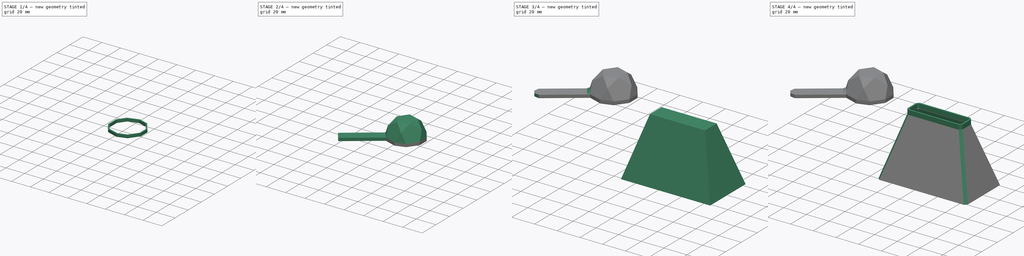
[diagram: build sequence overview — one tinted view per stage of 4, left to right]
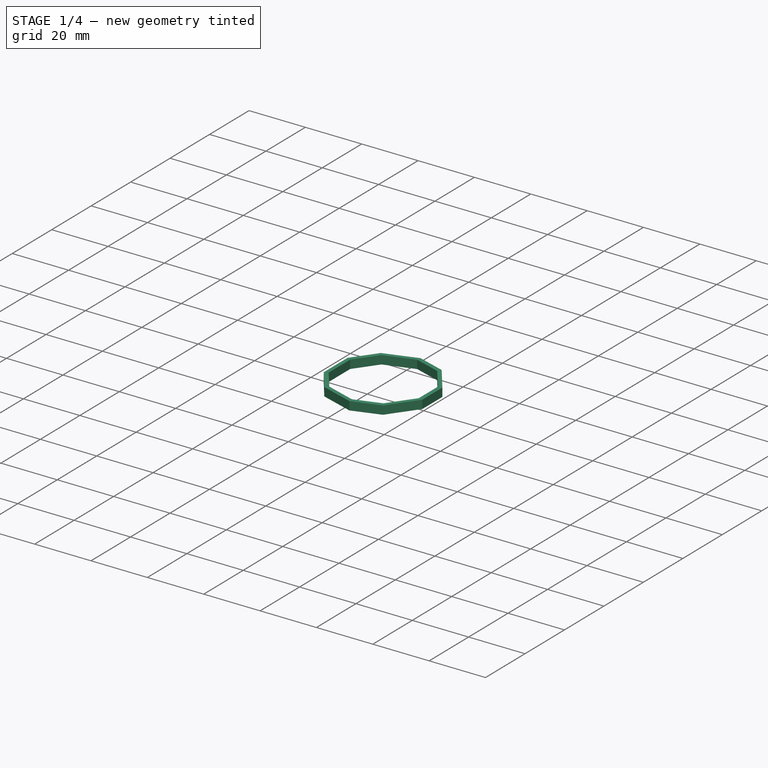
[diagram: stage 1 of 4 — iso view after this stage's code; geometry added in this stage tinted green]
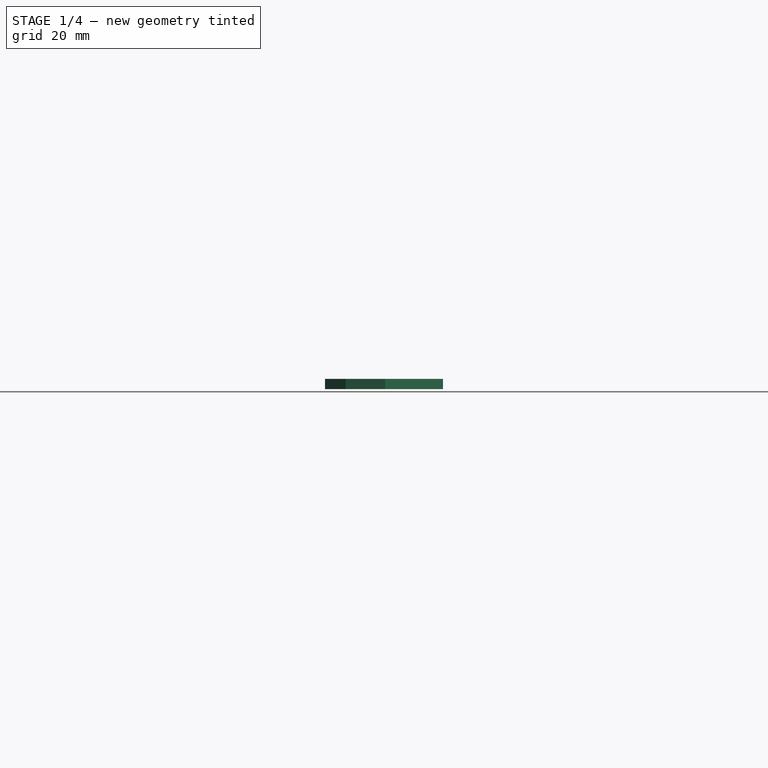
[diagram: stage 1 of 4 — front view after this stage's code; geometry added in this stage tinted green]
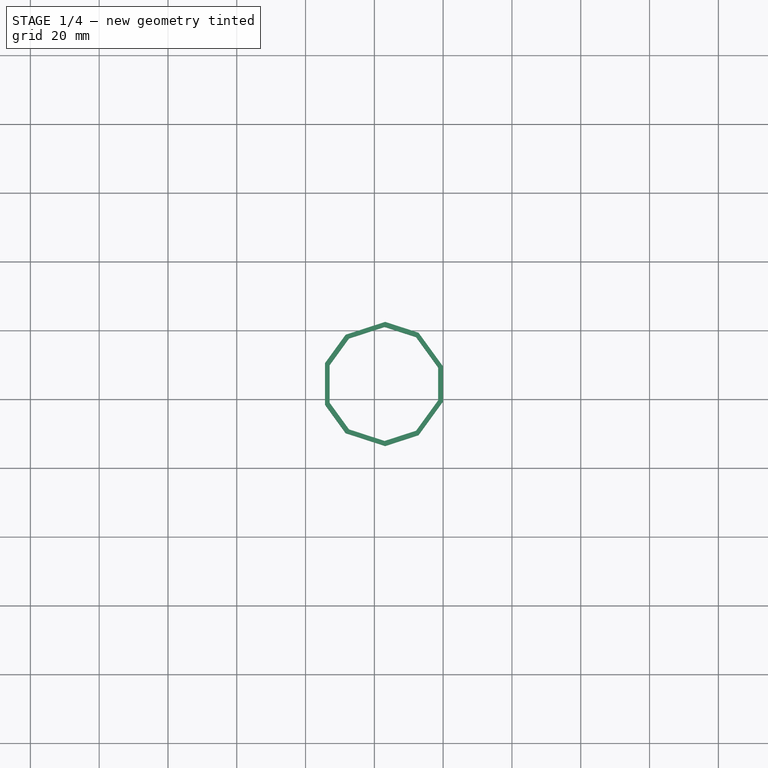
[diagram: stage 1 of 4 — top view after this stage's code; geometry added in this stage tinted green]
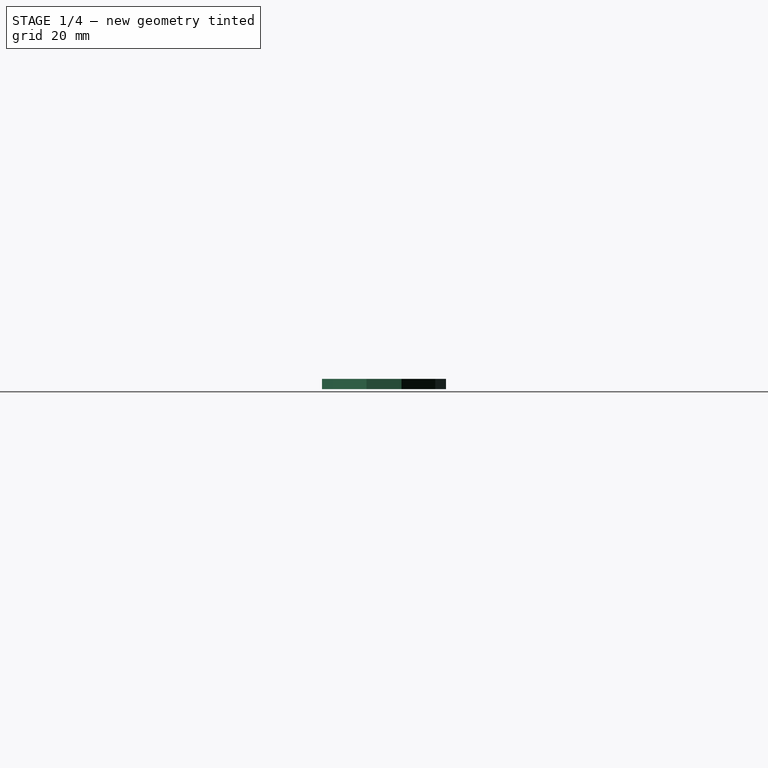
[diagram: stage 1 of 4 — right view after this stage's code; geometry added in this stage tinted green]
FCSTD DOCUMENT  (FreeCAD 2023.810R14555 (Git shallow))
Label: nevermore funnel
License: All rights reserved
LicenseURL: https://en.wikipedia.org/wiki/All_rights_reserved
objects: PartDesign::Chamfer×4, Sketcher::SketchObject×3, Part::Feature×2, Part::Refine×2, PartDesign::Pad×2, PartDesign::Body×2, PartDesign::SubShapeBinder×1, PartDesign::AdditiveLoft×1, PartDesign::Thickness×1, Part::Box×1, Part::Cut×1, Part::FeaturePython×1, Part::Extrusion×1, Part::MultiFuse×1, PartDesign::FeatureBase×1
note: 44 computed .brp shape members not serialized (recipe doc carries the construction recipe); baked Part::Feature solids carry a one-line shape summary decoded from their .brp

FEATURE [PartDesign::Body] Body  label="funnel"
  AutoGroupSolids = false
  ClaimAllChildren = false
  ExportMode = 0
  FixShape = 1
  Group = -> [Binder,Sketch,Sketch001,Loft,Pad,Chamfer,Thickness]
  InvalidShape = false
  Origin = -> Origin
  Tip = -> Thickness
  TreeRank = 16
  ValidateShape = false
  _ExportChildren = -> [Binder,Loft,Pad,Chamfer,Thickness]
  _GroupVersion = 1
FEATURE [Part::Feature] cup001_solid  label="cup001 (Solid)"
  FixShape = 1
  InvalidShape = false
  TreeRank = 32
  ValidateShape = false
  shape: bbox 35 x 36.8 x 15.65 mm, 180 faces (baked)
FEATURE [Part::Refine] Refined001  label="cup001 (Solid)001"
  FixShape = 1
  InvalidShape = false
  Source = -> cup001_solid
  TreeRank = 33
  ValidateShape = false
FEATURE [Part::Box] Box  label="Cube"
  AttacherType = Attacher::AttachEngine3D
  FixShape = 1
  Height = 1
  InvalidShape = false
  Length = 50
  TreeRank = 34
  ValidateShape = false
  Width = 50
FEATURE [Part::Cut] Cut
  Base = -> Refined001
  FixShape = 1
  InvalidShape = false
  Refine = true
  Tool = -> Box
  TreeRank = 35
  ValidateShape = false
FEATURE [Part::FeaturePython] Facebinder  # WARN: FeaturePython — macro-defined, semantics opaque (R4)
  Area = 147.554
  Extrusion = 0
  Faces = -> [Cut]
  FixShape = 1
  InvalidShape = false
  RemoveSplitter = false
  Sew = false
  TreeRank = 36
  ValidateShape = false
FEATURE [Part::Extrusion] Extrude
  AutoTaperInnerAngle = true
  Base = -> Facebinder
  Dir = (0,0,-1)
  DirMode = 2
  FaceMakerClass = Part::FaceMakerBullseye
  FixShape = 1
  InvalidShape = false
  LengthFwd = 3
  LengthRev = 0
  Linearize = true
  Solid = false
  Symmetric = false
  TaperInnerAngle = 0
  TaperInnerAngleRev = 0
  TreeRank = 37
  ValidateShape = false
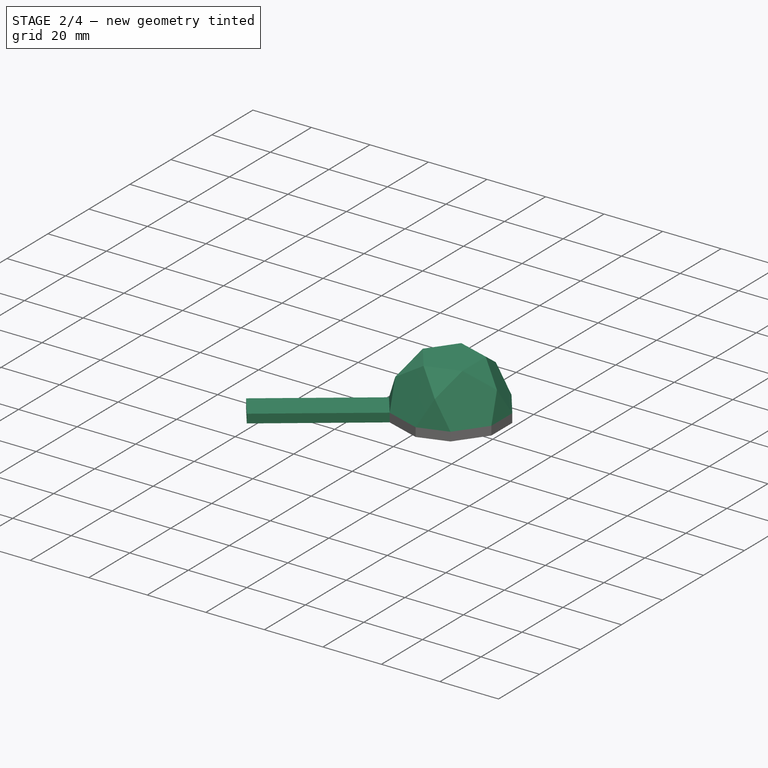
[diagram: stage 2 of 4 — iso view after this stage's code; geometry added in this stage tinted green]
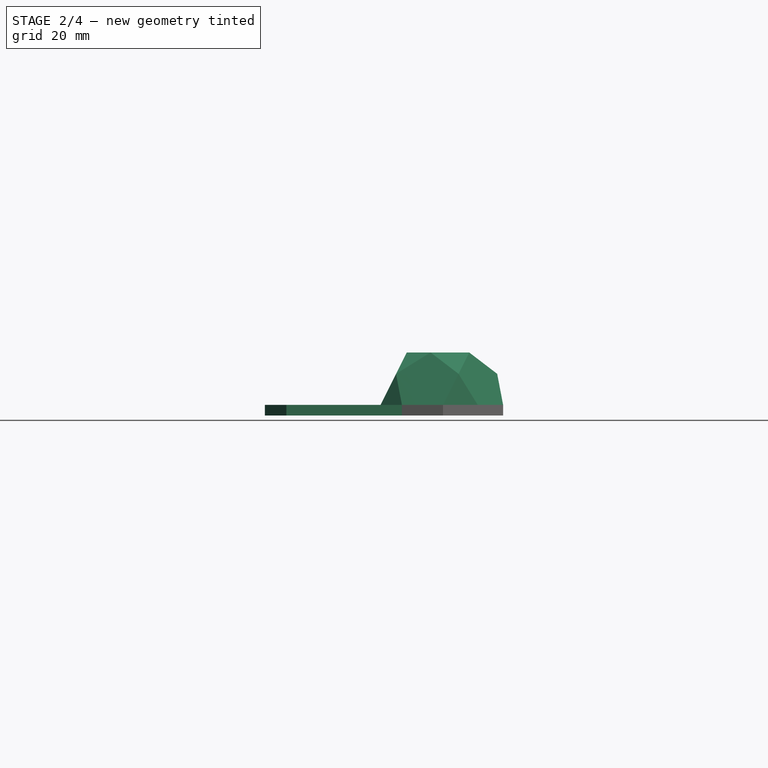
[diagram: stage 2 of 4 — front view after this stage's code; geometry added in this stage tinted green]
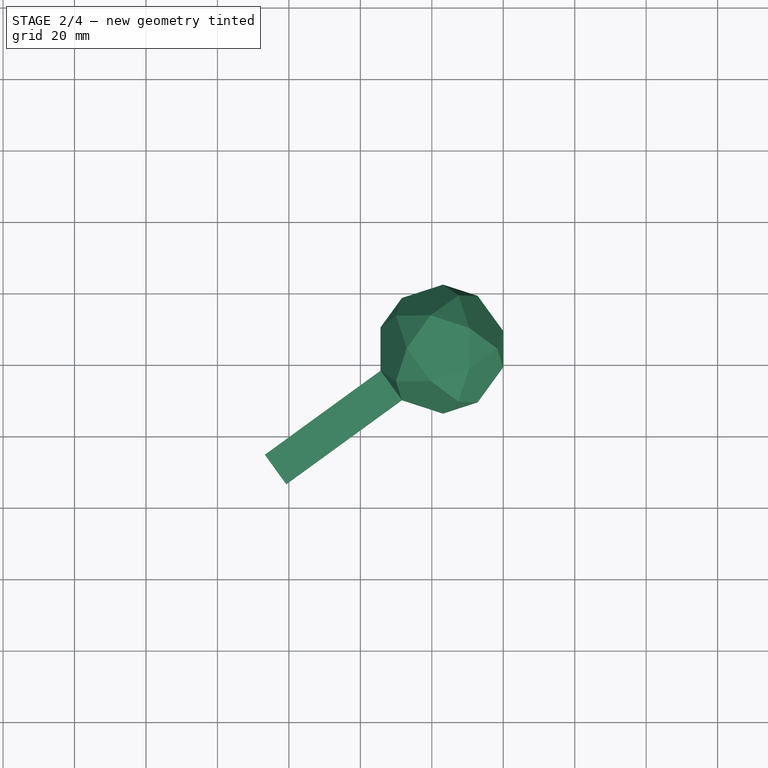
[diagram: stage 2 of 4 — top view after this stage's code; geometry added in this stage tinted green]
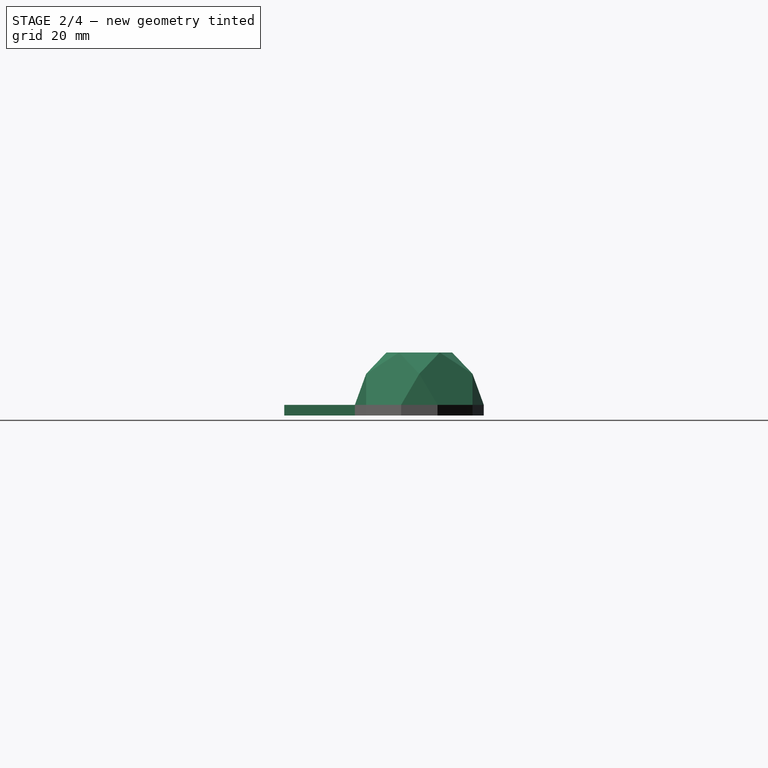
[diagram: stage 2 of 4 — right view after this stage's code; geometry added in this stage tinted green]
FEATURE [Part::MultiFuse] Fusion
  FixShape = 1
  InvalidShape = false
  Refine = true
  Shapes = -> [Cut,Extrude]
  TreeRank = 38
  ValidateShape = false
FEATURE [PartDesign::FeatureBase] BaseFeature
  BaseFeature = -> Fusion
  FixShape = 1
  InvalidShape = false
  NewSolid = false
  Suppress = false
  TreeRank = 48
  ValidateShape = false
FEATURE [Sketcher::SketchObject] Sketch002
  ArcFitTolerance = 1e-06
  AttachmentSupport = -> [BaseFeature]
  ExternalBSplineMaxDegree = 5
  ExternalBSplineTolerance = 0.0001
  ExternalGeometry = -> [BaseFeature]
  FixShape = 1
  FullyConstrained = true
  InternalTolerance = 1e-06
  InvalidShape = false
  MakeInternals = false
  MapMode = 5
  Placement = pos=(12.4704,9.06004,0) rot=(0.811307,-0.413389,-0.413389;1.7784rad)
  Support = -> [BaseFeature]
  TreeRank = 52
  ValidateShape = false
FEATURE [PartDesign::Pad] Pad001
  AddSubType = 0
  AlongSketchNormal = false
  AutoTaperInnerAngle = true
  BaseFeature = -> BaseFeature
  CheckUpToFaceLimits = true
  ClaimChildren = false
  Direction = (-0.809025,-0.587774,1e-16)
  Fit = 0
  FitJoin = 0
  FixShape = 1
  InnerFit = 0
  InnerFitJoin = 0
  InvalidShape = false
  Length = 40
  Length2 = 10
  Linearize = true
  NewSolid = false
  Profile = -> Sketch002
  ReferenceAxis = -> Sketch002 [N_Axis]
  Refine = true
  Suppress = false
  TaperInnerAngle = 0
  TaperInnerAngleRev = 0
  TreeRank = 53
  Type = 0
  ValidateShape = false
  _ProfileBasedVersion = 1
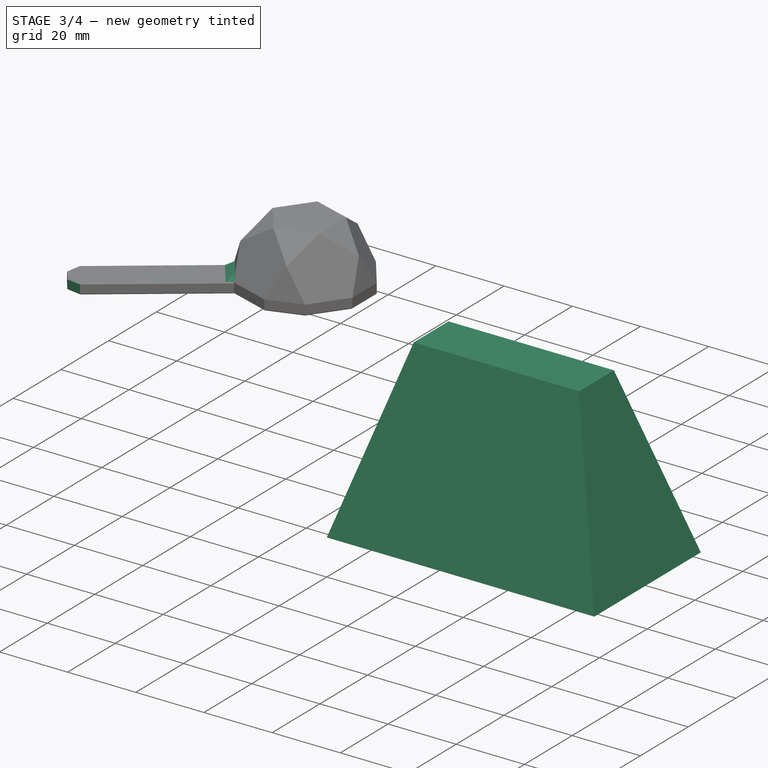
[diagram: stage 3 of 4 — iso view after this stage's code; geometry added in this stage tinted green]
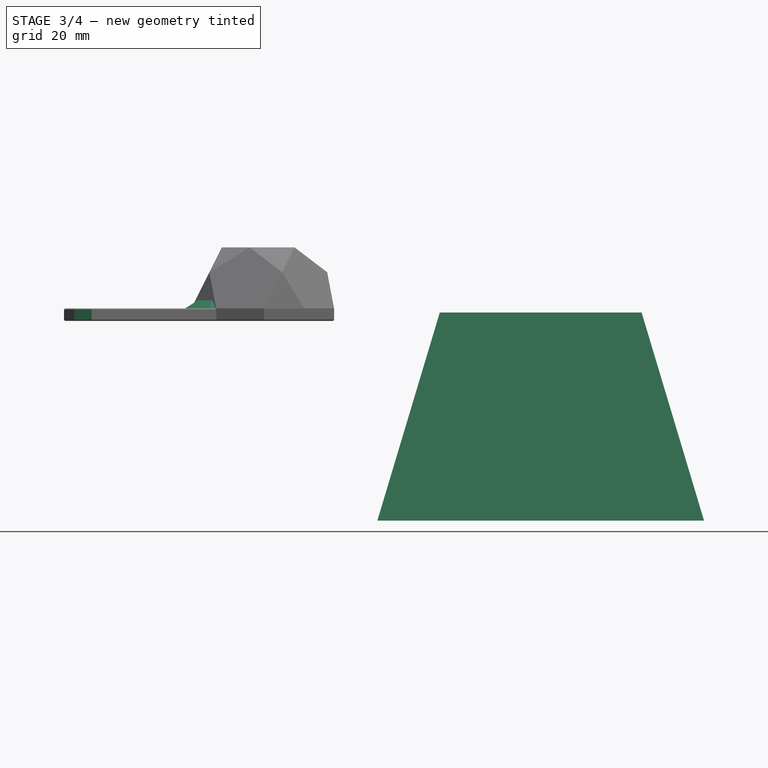
[diagram: stage 3 of 4 — front view after this stage's code; geometry added in this stage tinted green]
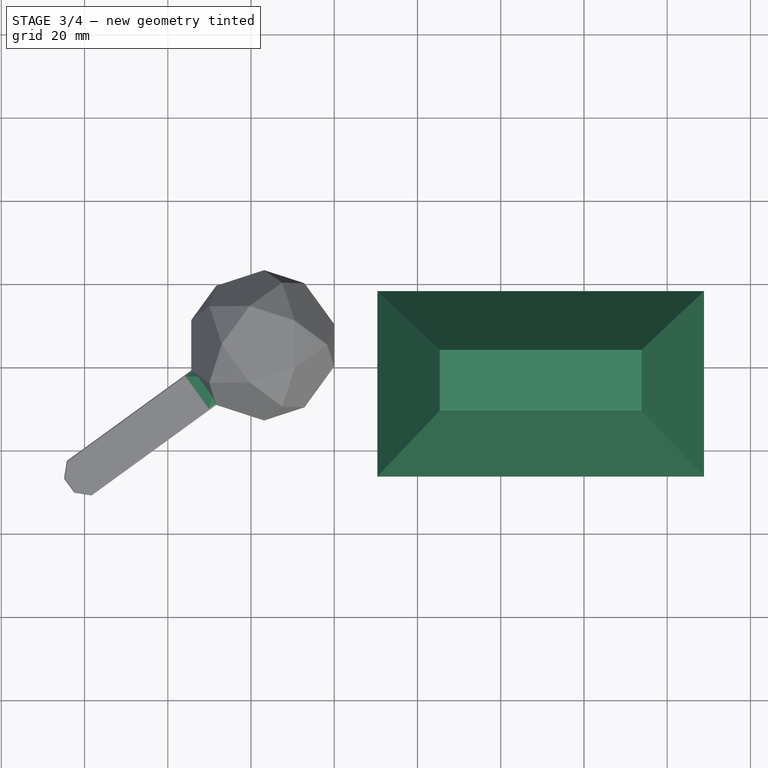
[diagram: stage 3 of 4 — top view after this stage's code; geometry added in this stage tinted green]
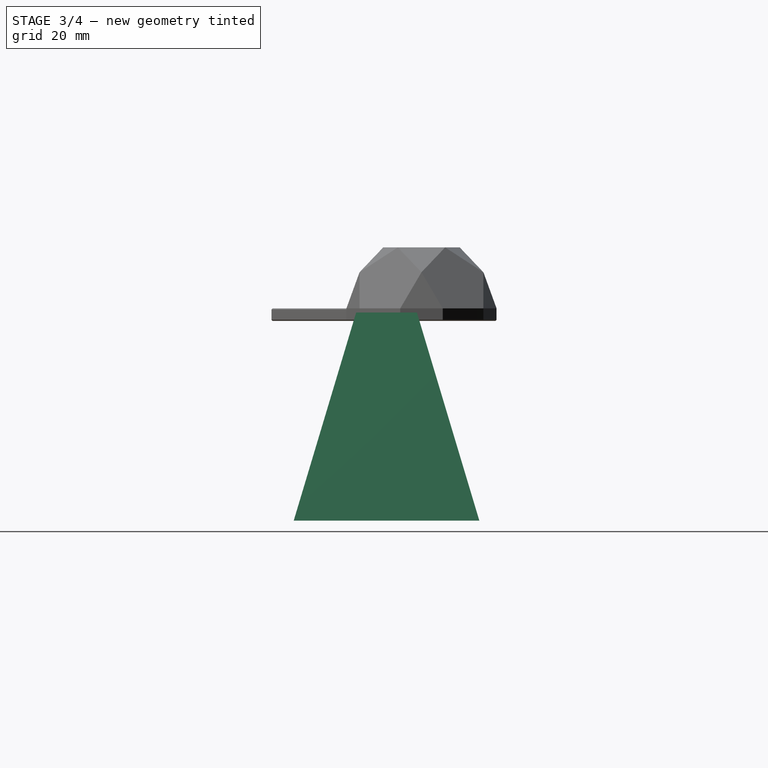
[diagram: stage 3 of 4 — right view after this stage's code; geometry added in this stage tinted green]
FEATURE [Part::Feature] Straight_Cartridge_flying_gyroscope001_solid  label="Straight_Cartridge_flying_gyroscope001 (Solid)"
  FixShape = 1
  InvalidShape = false
  TreeRank = 3
  ValidateShape = false
  shape: bbox 112.8 x 20.6 x 17.53 mm, 3992 faces (baked)
FEATURE [Part::Refine] Refined  label="Straight_Cartridge_flying_gyroscope001 (Solid)001"
  FixShape = 1
  InvalidShape = false
  Source = -> Straight_Cartridge_flying_gyroscope001_solid
  TreeRank = 4
  ValidateShape = false
FEATURE [PartDesign::SubShapeBinder] Binder  label="Binder(Straight_Cartridge_flying_gyroscope001 (Solid)001)..."
  BindCopyOnChange = 0
  BindMode = 0
  ClaimChildren = false
  Context = -> Body [Binder.]
  EdgeTolerance = 1e-06
  FillStyle = 0
  FixShape = 1
  Fuse = false
  InvalidShape = false
  MakeFace = true
  MergeEdges = true
  OffsetFill = false
  OffsetIntersection = false
  OffsetJoinType = 0
  OffsetOpenResult = false
  Outline = false
  PartialLoad = false
  Relative = true
  SplitEdges = false
  Support = -> [Refined[Face617,Face1649,Face528,Face1648,Face573]]
  TightBound = false
  TreeRank = 17
  ValidateShape = false
  _Version = 8
FEATURE [Sketcher::SketchObject] Sketch
  ArcFitTolerance = 1e-06
  AttachmentSupport = -> [XY_Plane]
  ExternalBSplineMaxDegree = 5
  ExternalBSplineTolerance = 0.0001
  ExternalGeometry = -> [Binder]
  FixShape = 1
  FullyConstrained = true
  InternalTolerance = 1e-06
  InvalidShape = false
  MakeInternals = false
  MapMode = 5
  Support = -> [XY_Plane]
  TreeRank = 18
  ValidateShape = false
  sketch-geometry (9):
    g0: LineSegment StartX=65.349 StartY=23.4037 StartZ=0 EndX=113.849 EndY=23.4037 EndZ=0
    g1: LineSegment StartX=113.849 StartY=23.4037 StartZ=0 EndX=113.849 EndY=8.80365 EndZ=0
    g2: LineSegment StartX=113.849 StartY=8.80365 StartZ=0 EndX=65.349 EndY=8.80365 EndZ=0
    g3: LineSegment StartX=65.349 StartY=8.80365 StartZ=0 EndX=65.349 EndY=23.4037 EndZ=0
    g4: LineSegment [constr] StartX=65.049 StartY=23.7037 StartZ=0 EndX=89.5989 EndY=16.1037 EndZ=0
    g5: LineSegment [constr] StartX=89.5989 StartY=16.1037 StartZ=0 EndX=114.149 EndY=8.50365 EndZ=0
    g6: LineSegment [constr] StartX=113.849 StartY=23.4037 StartZ=0 EndX=114.149 EndY=23.4037 EndZ=0
    g7: LineSegment [constr] StartX=113.849 StartY=8.80365 StartZ=0 EndX=113.849 EndY=8.50365 EndZ=0
    g8: GeomPoint [constr] X=89.5989 Y=16.1037 Z=0
  constraints (23):
    c: Coincident(g0,g1)
    c: Coincident(g1,g2)
    c: Coincident(g2,g3)
    c: Coincident(g3,g0)
    c: Horizontal(g0)
    c: Horizontal(g2)
    c: Vertical(g1)
    c: Vertical(g3)
    c: Coincident(g4,g-5)
    c: Coincident(g5,g4)
    c: Coincident(g5,g-6)
    c: Equal(g4,g5)
    c: Parallel(g4,g5)
    c: Symmetric(g0,g1,g4)
    c: Coincident(g6,g0)
    c: PointOnObject(g6,g-6)
    c: Horizontal(g6)
    c: DistanceX(g6,g6) = 0.3
    c: Coincident(g7,g1)
    c: PointOnObject(g7,g-3)
    c: Vertical(g7)
    c: Equal(g7,g6)
    c: Coincident(g8,g4)
FEATURE [Sketcher::SketchObject] Sketch001
  ArcFitTolerance = 1e-06
  AttachmentOffset = pos=(0,0,-50) rot=(0,0,1;0rad)
  AttachmentSupport = -> [XY_Plane]
  ExternalBSplineMaxDegree = 5
  ExternalBSplineTolerance = 0.0001
  ExternalGeometry = -> [Sketch]
  FixShape = 1
  FullyConstrained = true
  InternalTolerance = 1e-06
  InvalidShape = false
  MakeInternals = false
  MapMode = 5
  Placement = pos=(0,0,-50) rot=(0,0,1;0rad)
  Support = -> [XY_Plane]
  TreeRank = 25
  ValidateShape = false
  sketch-geometry (10):
    g0: LineSegment [constr] StartX=65.349 StartY=23.4037 StartZ=0 EndX=89.5989 EndY=16.1037 EndZ=0
    g1: LineSegment [constr] StartX=89.5989 StartY=16.1037 StartZ=0 EndX=113.849 EndY=8.80365 EndZ=0
    g2: LineSegment StartX=50.349 StartY=38.4037 StartZ=0 EndX=50.349 EndY=-6.19635 EndZ=0
    g3: LineSegment StartX=50.349 StartY=-6.19635 StartZ=0 EndX=128.849 EndY=-6.19635 EndZ=0
    g4: LineSegment StartX=128.849 StartY=-6.19635 StartZ=0 EndX=128.849 EndY=38.4037 EndZ=0
    g5: LineSegment StartX=128.849 StartY=38.4037 StartZ=0 EndX=50.349 EndY=38.4037 EndZ=0
    g6: GeomPoint [constr] X=89.5989 Y=16.1037 Z=0
    g7: LineSegment [constr] StartX=113.849 StartY=38.4037 StartZ=0 EndX=113.849 EndY=23.4037 EndZ=0
    g8: LineSegment [constr] StartX=113.849 StartY=23.4037 StartZ=0 EndX=128.849 EndY=23.4037 EndZ=0
    g9: GeomPoint [constr] X=89.5989 Y=16.1037 Z=0
  constraints (24):
    c: Coincident(g0,g-4)
    c: Coincident(g1,g0)
    c: Coincident(g1,g-6)
    c: Equal(g0,g1)
    c: Parallel(g0,g1)
    c: Coincident(g2,g3)
    c: Coincident(g3,g4)
    c: Coincident(g4,g5)
    c: Coincident(g5,g2)
    c: Horizontal(g3)
    c: Horizontal(g5)
    c: Vertical(g2)
    c: Vertical(g4)
    c: Symmetric(g3,g2,g6)
    c: Coincident(g6,g0)
    c: PointOnObject(g7,g5)
    c: Coincident(g7,g-6)
    c: Vertical(g7)
    c: Coincident(g8,g-6)
    c: PointOnObject(g8,g4)
    c: Horizontal(g8)
    c: Equal(g8,g7)
    c: DistanceX(g8,g8) = 15
    c: Coincident(g9,g0)
FEATURE [PartDesign::AdditiveLoft] Loft
  AddSubType = 0
  ClaimChildren = false
  Closed = false
  Fit = 0
  FitJoin = 0
  FixShape = 1
  InnerFit = 0
  InnerFitJoin = 0
  InvalidShape = false
  Linearize = true
  NewSolid = false
  Profile = -> Sketch
  Refine = true
  Ruled = false
  Sections = -> [Sketch001]
  SplitProfile = false
  Suppress = false
  TreeRank = 26
  ValidateShape = false
  _ProfileBasedVersion = 1
FEATURE [PartDesign::Chamfer] Chamfer001
  AddSubType = 0
  Angle = 45
  Base = -> Pad001 [Edge105,Edge100]
  BaseFeature = -> Pad001
  ChamferType = 0
  FixShape = 1
  FlipDirection = false
  InvalidShape = false
  NewSolid = false
  Refine = true
  Size = 3
  Size2 = 1
  SupportTransform = false
  Suppress = false
  TreeRank = 54
  UseAllEdges = false
  ValidateShape = false
FEATURE [PartDesign::Chamfer] Chamfer002
  AddSubType = 0
  Angle = 45
  Base = -> Chamfer001 [Face5,Edge1,Edge5,Edge7,Edge9,Edge8]
  BaseFeature = -> Chamfer001
  ChamferType = 0
  FixShape = 1
  FlipDirection = false
  InvalidShape = false
  NewSolid = false
  Refine = true
  Size = 0.25
  Size2 = 1
  SupportTransform = false
  Suppress = false
  TreeRank = 55
  UseAllEdges = false
  ValidateShape = false
FEATURE [PartDesign::Chamfer] Chamfer003
  AddSubType = 0
  Angle = 45
  Base = -> Chamfer002 [Edge27]
  BaseFeature = -> Chamfer002
  ChamferType = 0
  FixShape = 1
  FlipDirection = false
  InvalidShape = false
  NewSolid = false
  Refine = true
  Size = 2
  Size2 = 1
  SupportTransform = false
  Suppress = false
  TreeRank = 56
  UseAllEdges = false
  ValidateShape = false
FEATURE [PartDesign::Body] Body001  label="cup"
  AutoGroupSolids = false
  BaseFeature = -> Fusion
  ClaimAllChildren = false
  ExportMode = 0
  FixShape = 1
  Group = -> [BaseFeature,Sketch002,Pad001,Chamfer001,Chamfer002,Chamfer003]
  InvalidShape = false
  Origin = -> Origin001
  Tip = -> Chamfer003
  TreeRank = 51
  ValidateShape = false
  _ExportChildren = -> [BaseFeature,Pad001,Chamfer001,Chamfer002,Chamfer003]
  _GroupVersion = 1
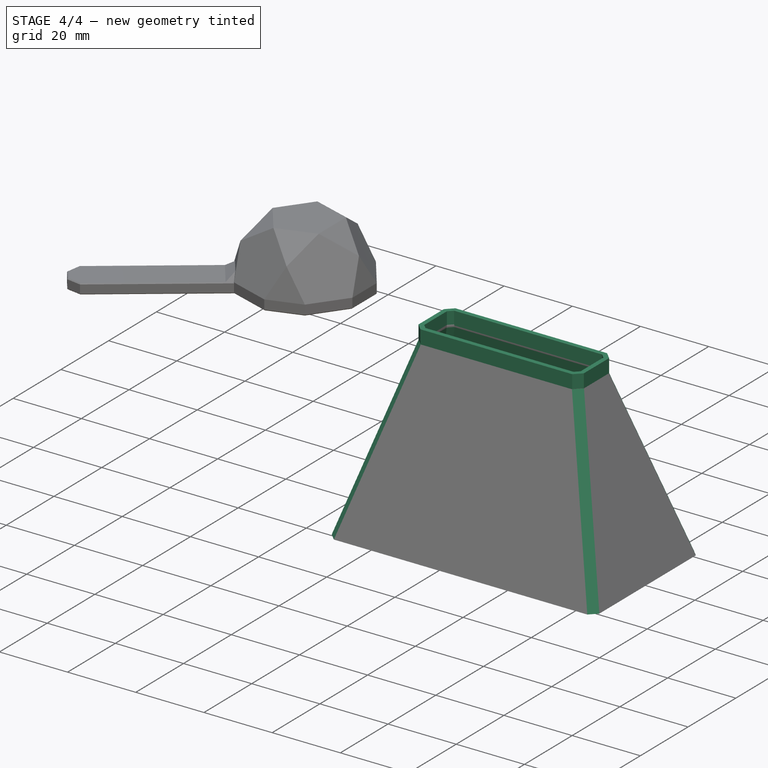
[diagram: stage 4 of 4 — iso view after this stage's code; geometry added in this stage tinted green]
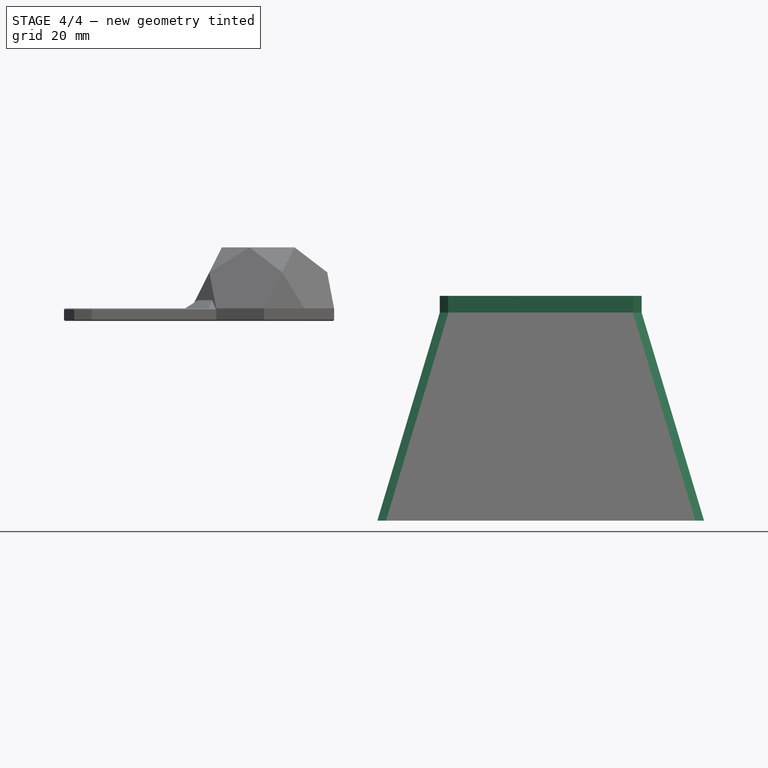
[diagram: stage 4 of 4 — front view after this stage's code; geometry added in this stage tinted green]
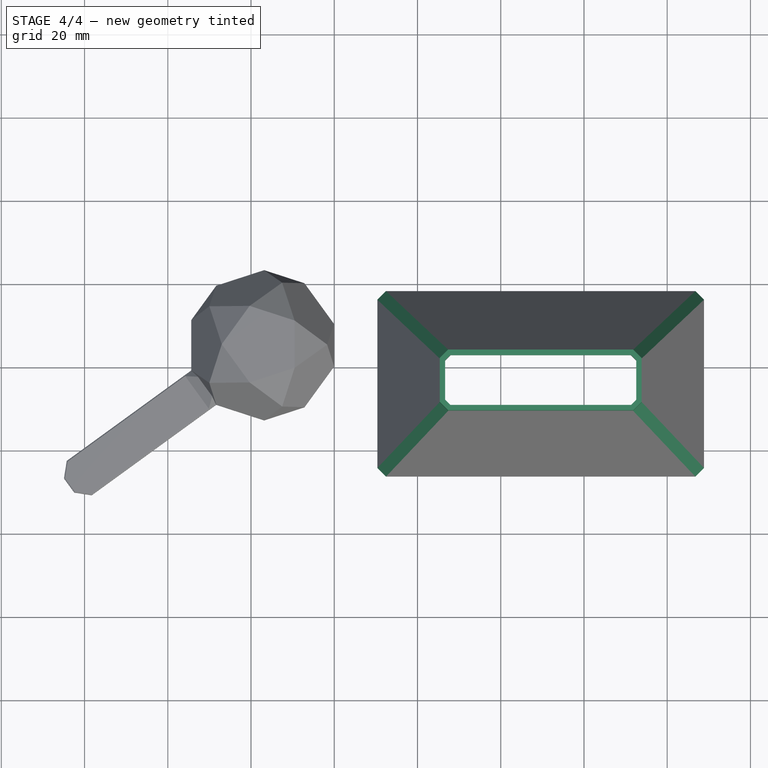
[diagram: stage 4 of 4 — top view after this stage's code; geometry added in this stage tinted green]
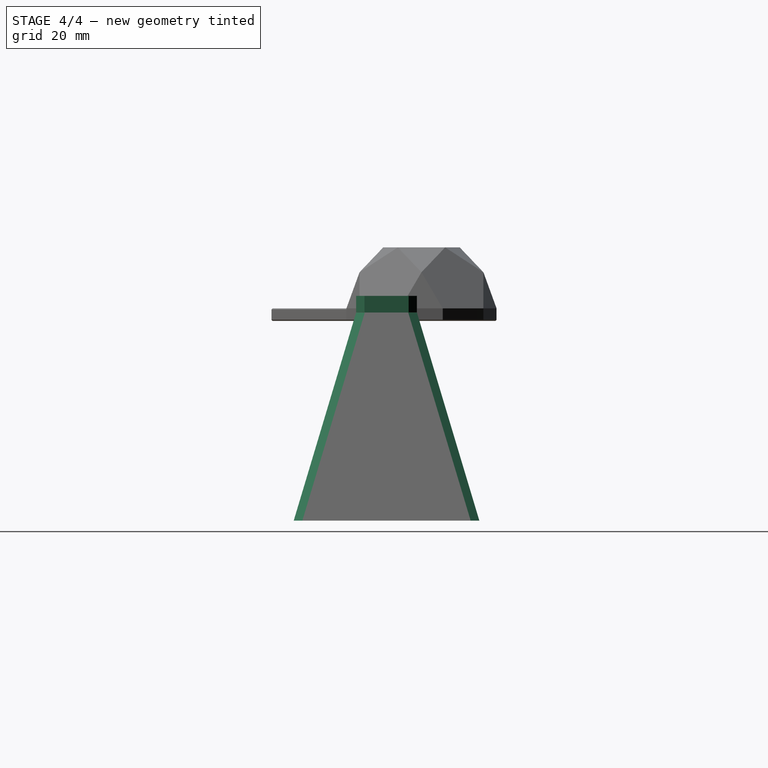
[diagram: stage 4 of 4 — right view after this stage's code; geometry added in this stage tinted green]
FEATURE [PartDesign::Pad] Pad
  AddSubType = 0
  AlongSketchNormal = false
  AutoTaperInnerAngle = true
  BaseFeature = -> Loft
  CheckUpToFaceLimits = true
  ClaimChildren = false
  Direction = (0,0,1)
  Fit = 0
  FitJoin = 0
  FixShape = 1
  InnerFit = 0
  InnerFitJoin = 0
  InvalidShape = false
  Length = 4
  Length2 = 10
  Linearize = true
  NewSolid = false
  Profile = -> Sketch
  ReferenceAxis = -> Sketch [N_Axis]
  Refine = true
  Suppress = false
  TaperInnerAngle = 0
  TaperInnerAngleRev = 0
  TreeRank = 27
  Type = 0
  ValidateShape = false
  _ProfileBasedVersion = 1
FEATURE [PartDesign::Chamfer] Chamfer
  AddSubType = 0
  Angle = 45
  Base = -> Pad [Edge2,Edge6,Edge9,Edge17,Edge4,Edge5,Edge14,Edge15]
  BaseFeature = -> Pad
  ChamferType = 0
  FixShape = 1
  FlipDirection = false
  InvalidShape = false
  NewSolid = false
  Refine = true
  Size = 2
  Size2 = 1
  SupportTransform = false
  Suppress = false
  TreeRank = 28
  UseAllEdges = false
  ValidateShape = false
FEATURE [PartDesign::Thickness] Thickness
  AddSubType = 0
  Base = -> Chamfer [Face5,Face10]
  BaseFeature = -> Chamfer
  FixShape = 1
  Intersection = true
  InvalidShape = false
  Join = 0
  MakeOffset = false
  Mode = 0
  NewSolid = false
  Refine = true
  Reversed = true
  SupportTransform = false
  Suppress = false
  TreeRank = 29
  ValidateShape = false
  Value = 1.3
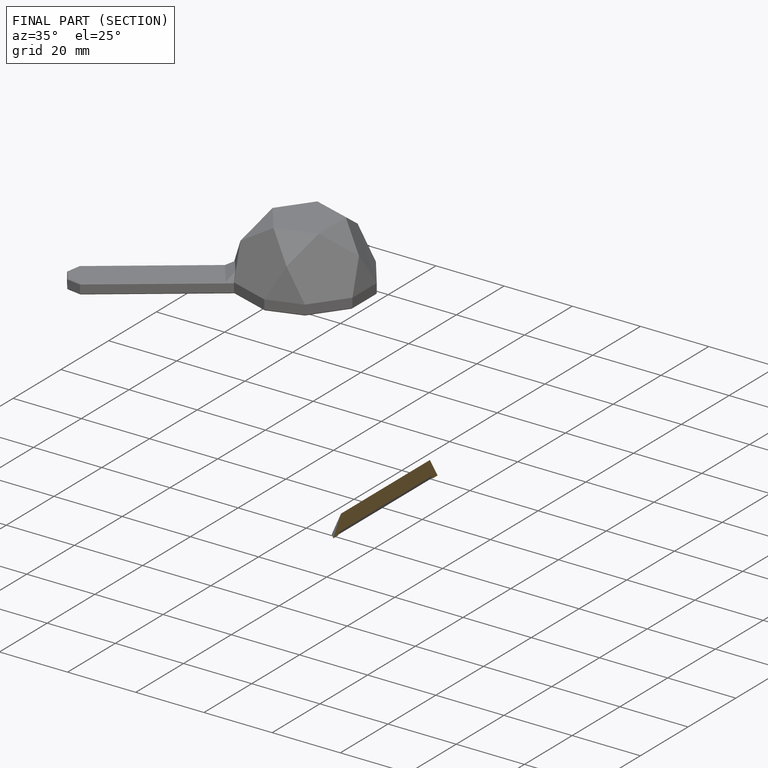
[diagram: finished part — half-section view (interior)]
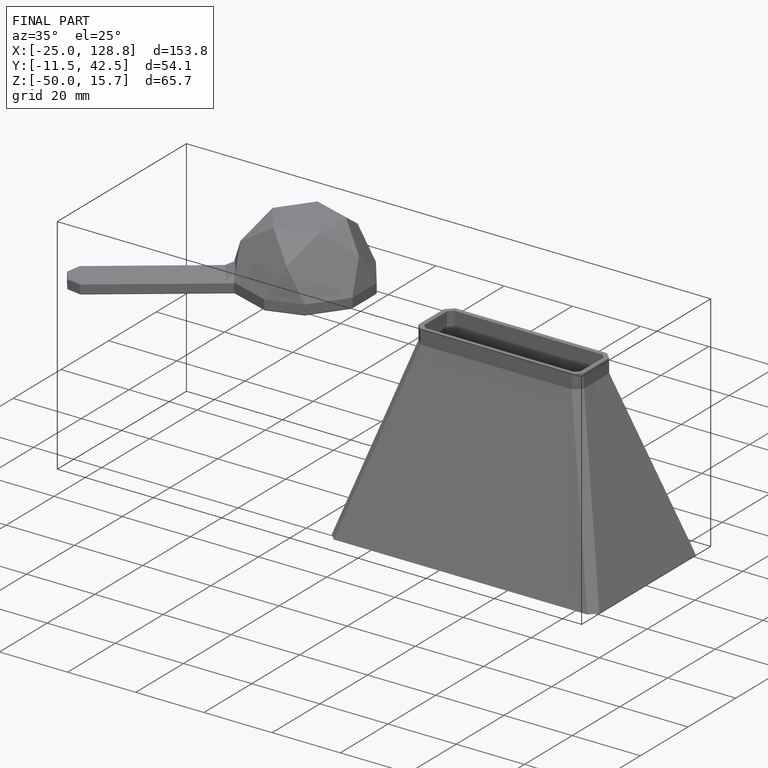
[diagram: finished part — iso view with bounding-box wireframe]
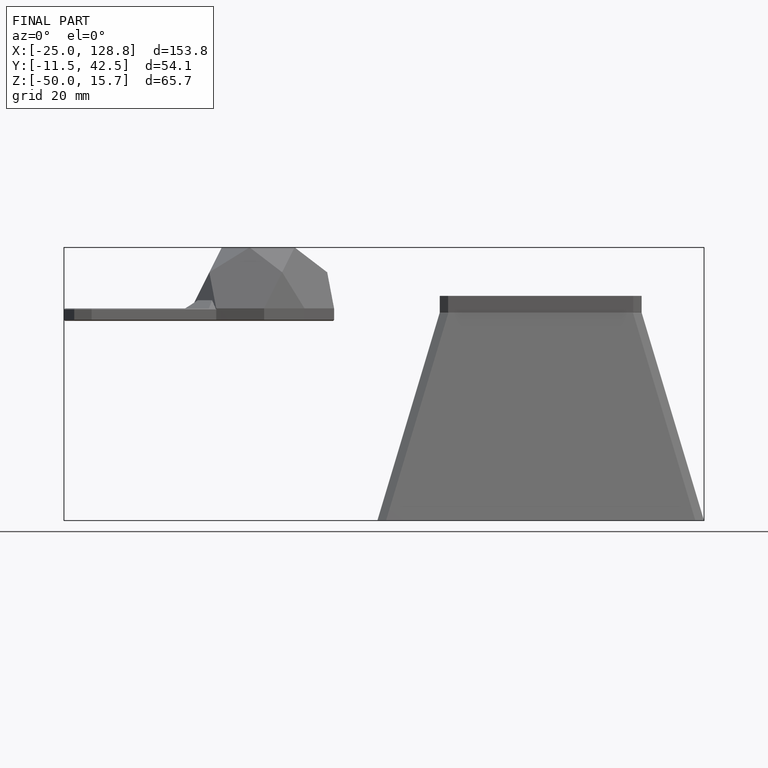
[diagram: finished part — front view with bounding-box wireframe]
